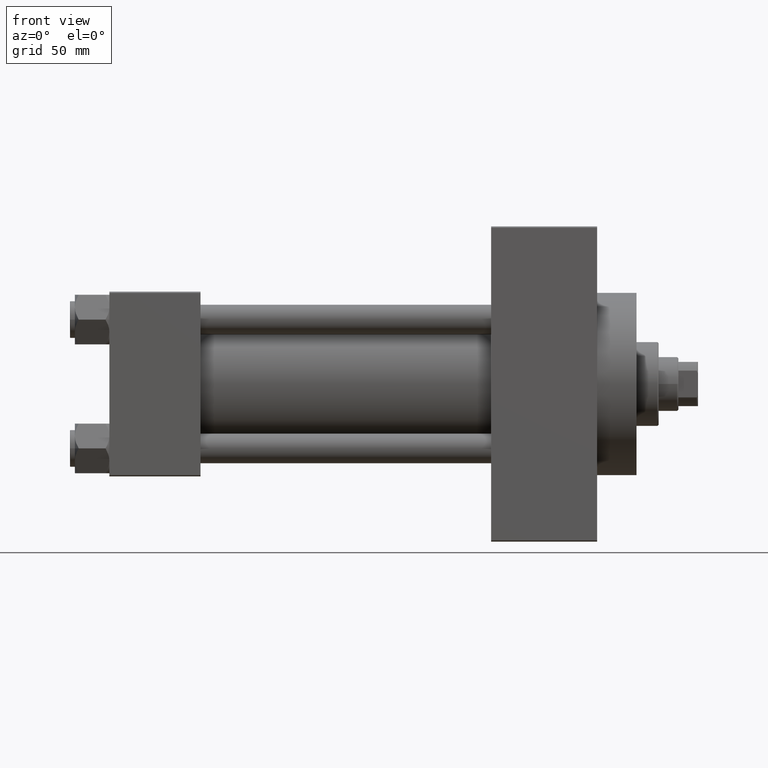
[diagram: clean part render]
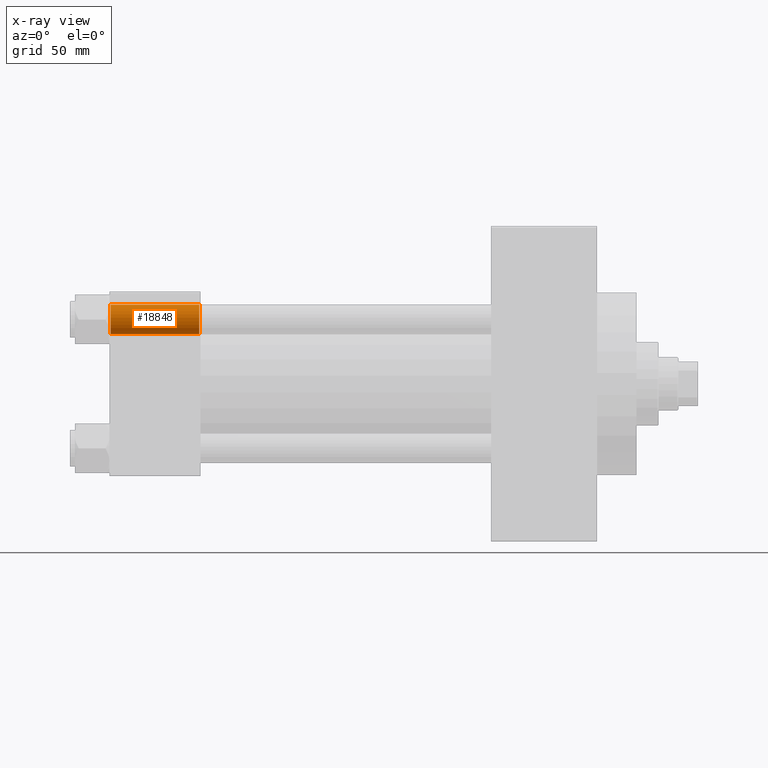
[diagram: x-ray — body ghosted, one internal face saturated and labeled with its STEP entity id]
A machine part, front view, then the same camera in x-ray: the body is ghosted and one INTERNAL B-rep face — a face not visible from any outside direction — is saturated and labeled: STEP entity #18848.
In plain terms, the highlighted cylindrical surface (edge-blend (fillet) strip) has radius 6 mm, axis along (-1, -0, -0).
Its self-contained STEP definition (entity closure, byte-faithful):
#1033 = AXIS2_PLACEMENT_3D ( 'NONE', #1108, #27895, #30298 ) ;
#1108 = CARTESIAN_POINT ( 'NONE',  ( 37.00000000000000711, -26.14999999999999147, 26.15000000000000924 ) ) ;
#1175 = CARTESIAN_POINT ( 'NONE',  ( 36.50000000000000000, -26.14999999999999147, 20.15000000000000924 ) ) ;
#1352 = LINE ( 'NONE', #35126, #19565 ) ;
#1626 = CIRCLE ( 'NONE', #29598, 6.000000000000001776 ) ;
#3212 = AXIS2_PLACEMENT_3D ( 'NONE', #28021, #38753, #27773 ) ;
#3726 = LINE ( 'NONE', #30517, #19991 ) ;
#7716 = DIRECTION ( 'NONE',  ( -1.000000000000000000, -0.000000000000000000, -0.000000000000000000 ) ) ;
#13382 = EDGE_CURVE ( 'NONE', #41499, #46849, #33572, .T. ) ;
#13513 = EDGE_CURVE ( 'NONE', #39870, #41499, #3726, .T. ) ;
#13928 = ORIENTED_EDGE ( 'NONE', *, *, #23491, .F. ) ;
#15109 = VERTEX_POINT ( 'NONE', #34623 ) ;
#17002 = ORIENTED_EDGE ( 'NONE', *, *, #13382, .T. ) ;
#17950 = DIRECTION ( 'NONE',  ( 0.000000000000000000, 0.000000000000000000, 1.000000000000000000 ) ) ;
#18848 = ADVANCED_FACE ( 'NONE', ( #20147 ), #35378, .F. ) ;
#19565 = VECTOR ( 'NONE', #42882, 1000.000000000000000 ) ;
#19809 = EDGE_LOOP ( 'NONE', ( #27925, #42297, #17002, #13928 ) ) ;
#19991 = VECTOR ( 'NONE', #7716, 1000.000000000000000 ) ;
#20147 = FACE_OUTER_BOUND ( 'NONE', #19809, .T. ) ;
#23491 = EDGE_CURVE ( 'NONE', #15109, #46849, #1352, .T. ) ;
#27773 = DIRECTION ( 'NONE',  ( 0.000000000000000000, 0.000000000000000000, 1.000000000000000000 ) ) ;
#27895 = DIRECTION ( 'NONE',  ( -1.000000000000000000, -0.000000000000000000, -0.000000000000000000 ) ) ;
#27925 = ORIENTED_EDGE ( 'NONE', *, *, #42897, .T. ) ;
#28021 = CARTESIAN_POINT ( 'NONE',  ( 0.5000000000000281997, -26.14999999999999147, 26.15000000000000924 ) ) ;
#29598 = AXIS2_PLACEMENT_3D ( 'NONE', #44699, #48463, #17950 ) ;
#30298 = DIRECTION ( 'NONE',  ( 0.000000000000000000, 0.000000000000000000, 1.000000000000000000 ) ) ;
#30517 = CARTESIAN_POINT ( 'NONE',  ( 37.00000000000000711, -26.14999999999999147, 20.15000000000001279 ) ) ;
#32136 = CARTESIAN_POINT ( 'NONE',  ( 0.5000000000000281997, -26.14999999999999147, 32.15000000000001279 ) ) ;
#33572 = CIRCLE ( 'NONE', #3212, 6.000000000000001776 ) ;
#34623 = CARTESIAN_POINT ( 'NONE',  ( 36.50000000000000000, -26.14999999999999147, 32.15000000000001279 ) ) ;
#35126 = CARTESIAN_POINT ( 'NONE',  ( 37.00000000000000711, -26.14999999999999147, 32.15000000000001279 ) ) ;
#35378 = CYLINDRICAL_SURFACE ( 'NONE', #1033, 6.000000000000001776 ) ;
#38753 = DIRECTION ( 'NONE',  ( -1.000000000000000000, 0.000000000000000000, 0.000000000000000000 ) ) ;
#39870 = VERTEX_POINT ( 'NONE', #1175 ) ;
#41499 = VERTEX_POINT ( 'NONE', #45560 ) ;
#42297 = ORIENTED_EDGE ( 'NONE', *, *, #13513, .T. ) ;
#42882 = DIRECTION ( 'NONE',  ( -1.000000000000000000, -0.000000000000000000, -0.000000000000000000 ) ) ;
#42897 = EDGE_CURVE ( 'NONE', #15109, #39870, #1626, .T. ) ;
#44699 = CARTESIAN_POINT ( 'NONE',  ( 36.50000000000000000, -26.14999999999999147, 26.15000000000000924 ) ) ;
#45560 = CARTESIAN_POINT ( 'NONE',  ( 0.5000000000000281997, -26.14999999999999147, 20.15000000000000924 ) ) ;
#46849 = VERTEX_POINT ( 'NONE', #32136 ) ;
#48463 = DIRECTION ( 'NONE',  ( 1.000000000000000000, -0.000000000000000000, -0.000000000000000000 ) ) ;